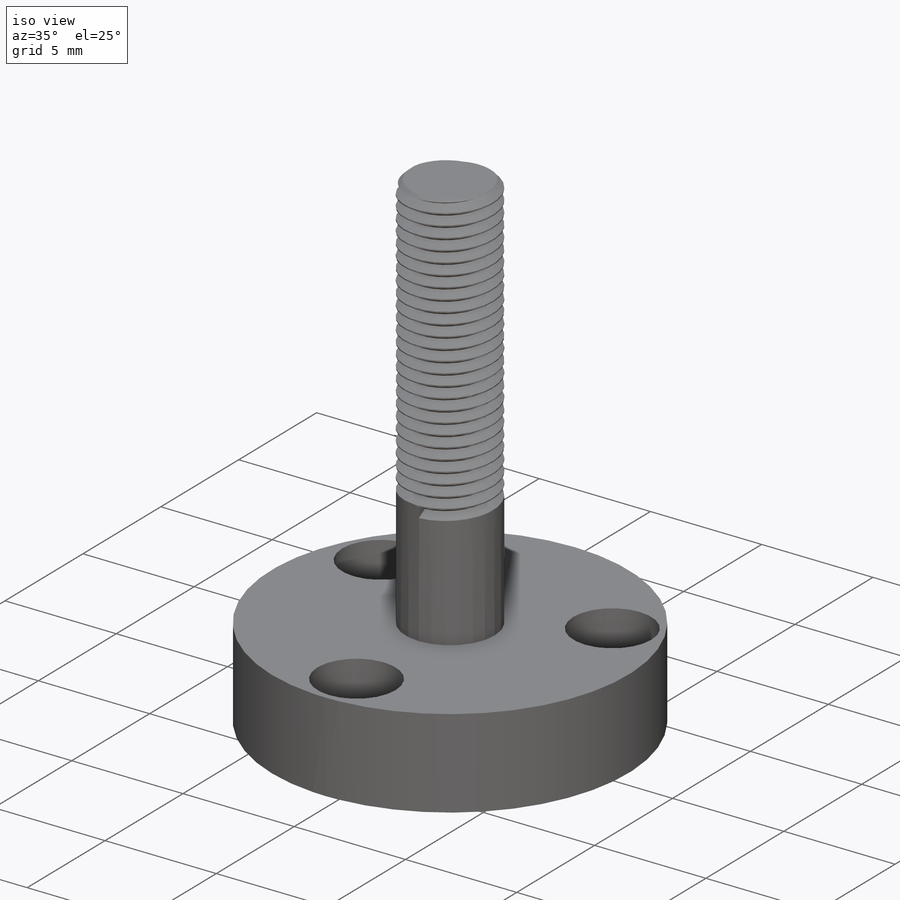
[diagram: iso view]
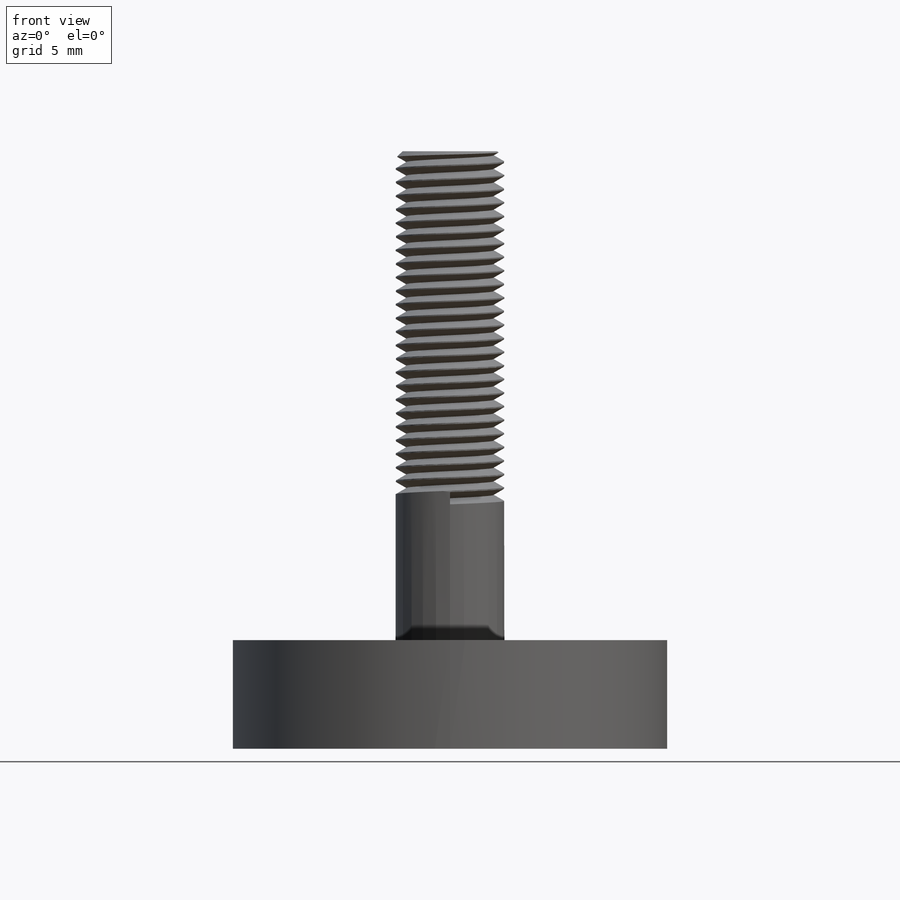
[diagram: front view]
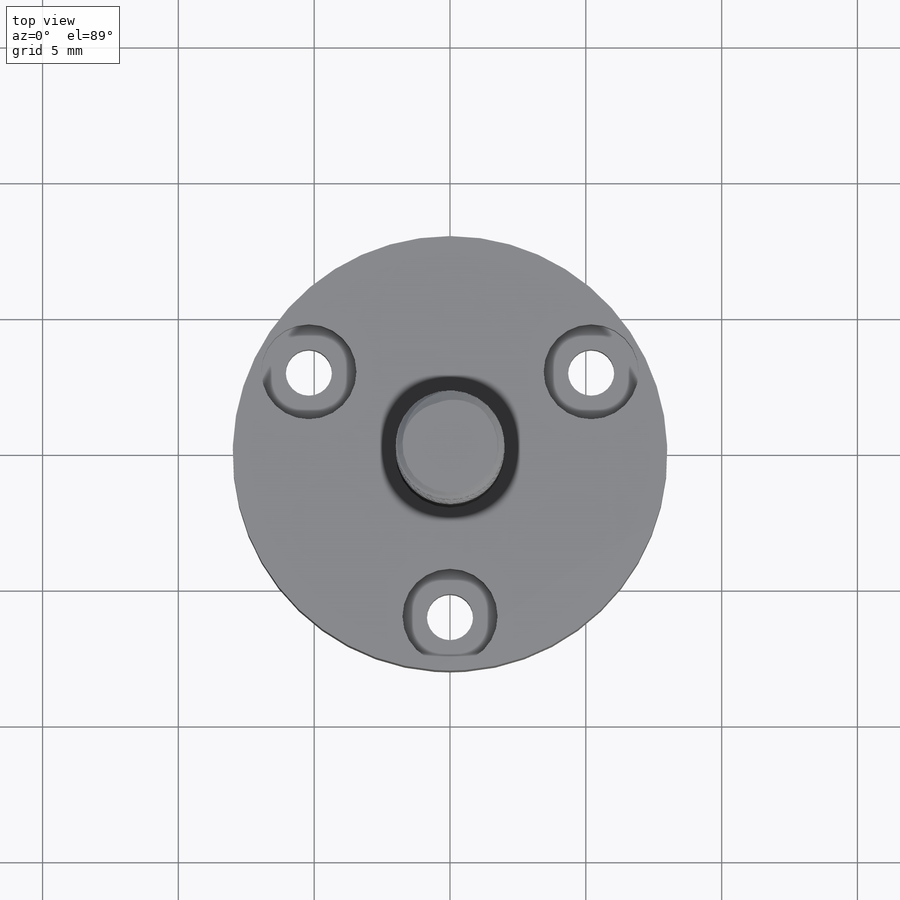
[diagram: top view]
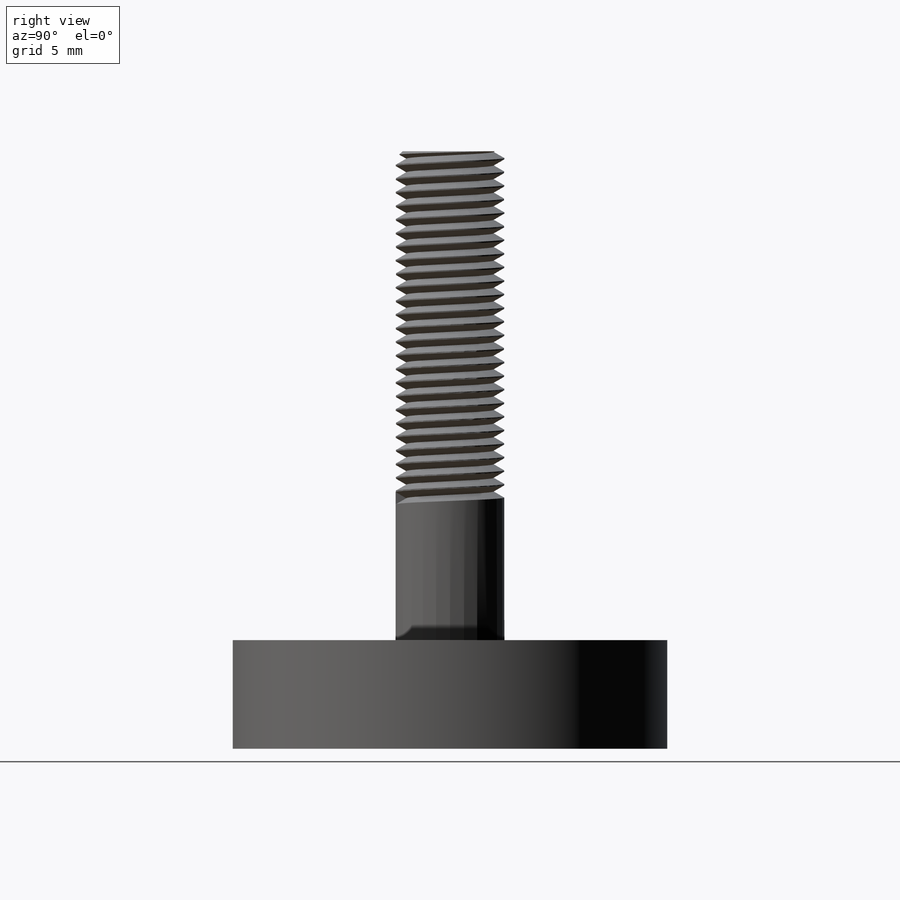
[diagram: right view]
SOLIDWORKS PART (.sldprt)
format: sldprt  version: not decoded by parser v0  size: 655,872 bytes
history: native  units: mm
features: sketch x8, chamfer x3, extrude x2, cut_extrude x2, material x1, hole x1, plane x1, helix x1, sweep x1 (+12 scaffold rows collapsed)
feature tree (32):
  scaffold x12  (default folders/planes/origin — collapsed)
  material  "Material <not specified>"
  sketch  "Sketch1"  dims[D1=16.0mm]
  extrude  "Boss-Extrude1"  Depth=4mm
  sketch  "Sketch2"  dims[D1=9.0mm]
  cut_extrude  "Cut-Extrude1"  Depth=1.5mm
  chamfer  "Chamfer1"  Distance=0.25mm Angle=45deg
  sketch  "Sketch3"  dims[D1=2.0mm]
  cut_extrude  "Cut-Extrude2"  Depth=0.5mm
  chamfer  "Chamfer2"  Distance=0.25mm Angle=45deg
  sketch  "Sketch5"  dims[D2=4.0mm D1=3.0]
  hole  "CBORE for M1.6 SHCS1"  Diameter=1.7mm Depth=4mm
  sketch  "3DSketch1"  dims[D1=6.0mm D2=6.0mm D3=6.0mm]
  sketch  "Sketch6"  dims[hole-wizard template sketch: 41 standard entries collapsed; hole parameters kept: c12.Thru Hole Dia.=1.7mm c12.Thru Hole Depth=4.0mm c12.C'Bore Dia.=3.5mm c12.C'Bore Depth=1.6mm]
  extrude  "Boss-Extrude2"  Depth=18mm
  plane  "Plane1"  Offset=5mm
  sketch  "Sketch7"
  helix  "Helix/Spiral1"  Pitch=13mm
  sketch  "Sketch8"  dims[D1=0.45mm]
  sweep  "Cut-Sweep1"
  chamfer  "Chamfer3"  Distance=0.25mm Angle=45deg
decode coverage: 16 of 18 modeling features carry decoded parameters
note: ~ marks probable driven/reference dimensions
note: suppression state not decoded; provenance and decode notes live in map.json
